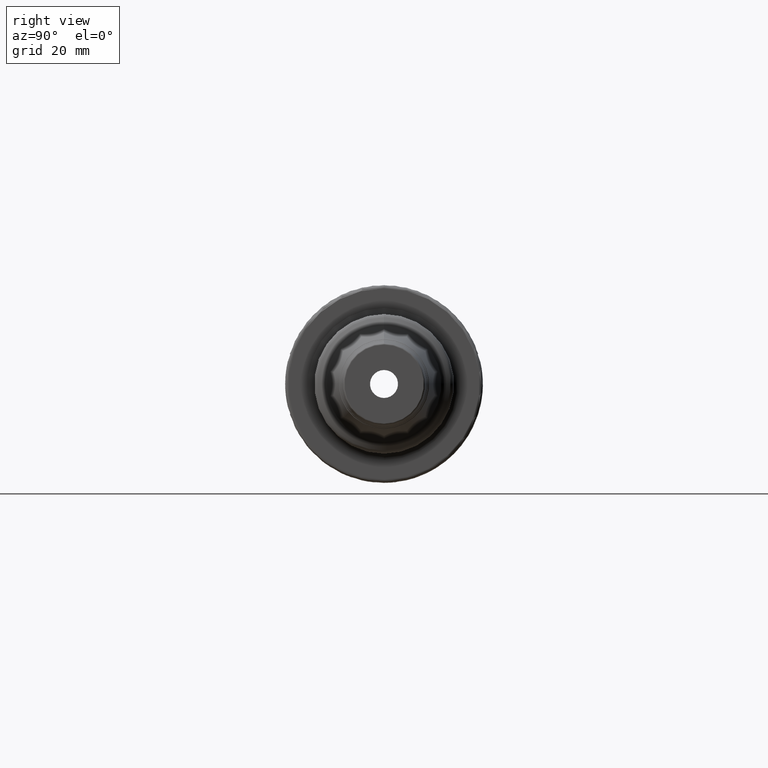
[diagram: clean part render]
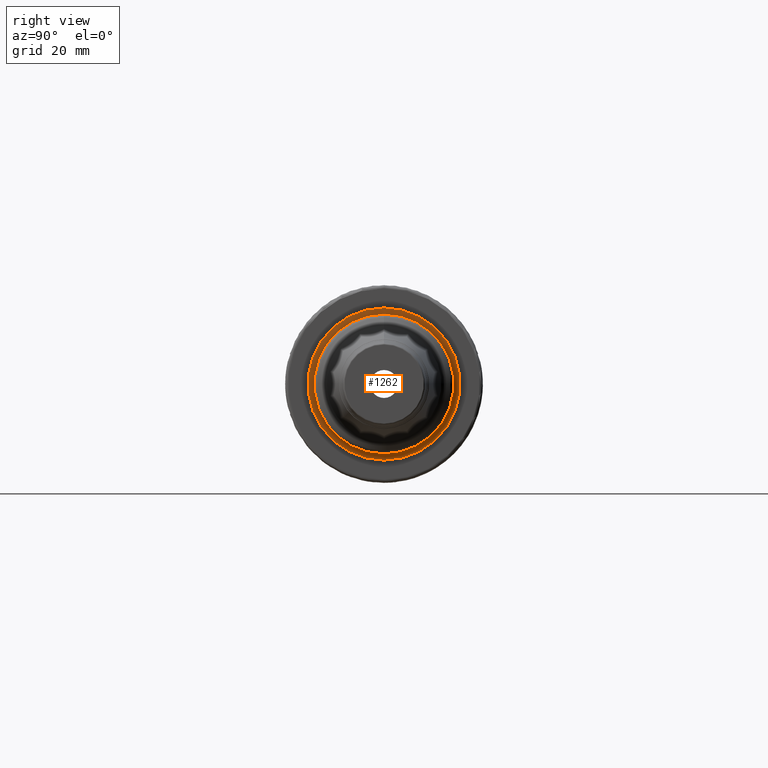
[diagram: same view with one face highlighted and labeled with its STEP entity id]
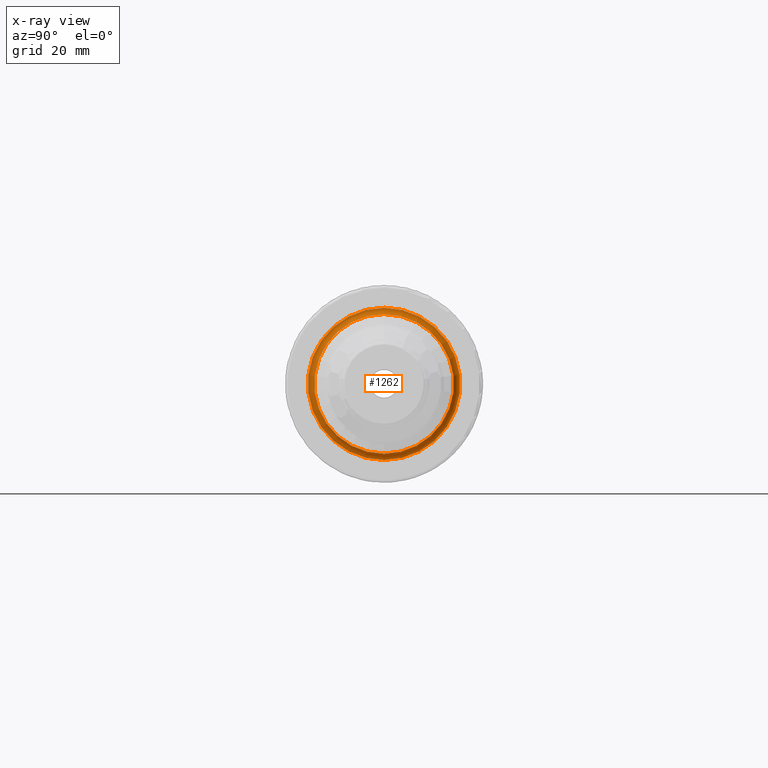
[diagram: x-ray of the same camera — body ghosted, the highlighted face saturated]
A machine part, right view. The second image highlights one B-rep face of the part: STEP entity #1262.
The next image is the same camera in x-ray: the body ghosted, the highlighted face saturated — about 0% of this face is hidden behind the body in this view.
In plain terms, the highlighted toroidal blend (fillet) surface has major radius 24.25 mm and minor (blend) radius 2 mm.
Its self-contained STEP definition (entity closure, byte-faithful):
#278=FACE_OUTER_BOUND('',#360,.T.);
#360=EDGE_LOOP('',(#922,#923,#924,#925,#926));
#457=CIRCLE('',#1400,22.25);
#458=CIRCLE('',#1401,22.25);
#459=CIRCLE('',#1403,2.);
#460=CIRCLE('',#1404,24.25);
#539=VERTEX_POINT('',#2021);
#540=VERTEX_POINT('',#2023);
#541=VERTEX_POINT('',#2027);
#681=EDGE_CURVE('',#540,#539,#457,.T.);
#682=EDGE_CURVE('',#539,#540,#458,.T.);
#683=EDGE_CURVE('',#540,#541,#459,.T.);
#684=EDGE_CURVE('',#541,#541,#460,.T.);
#922=ORIENTED_EDGE('',*,*,#681,.T.);
#923=ORIENTED_EDGE('',*,*,#682,.T.);
#924=ORIENTED_EDGE('',*,*,#683,.T.);
#925=ORIENTED_EDGE('',*,*,#684,.T.);
#926=ORIENTED_EDGE('',*,*,#683,.F.);
#1232=TOROIDAL_SURFACE('',#1402,24.25,2.);
#1262=ADVANCED_FACE('',(#278),#1232,.F.);
#1400=AXIS2_PLACEMENT_3D('',#2024,#1642,#1643);
#1401=AXIS2_PLACEMENT_3D('',#2025,#1644,#1645);
#1402=AXIS2_PLACEMENT_3D('',#2026,#1646,#1647);
#1403=AXIS2_PLACEMENT_3D('',#2028,#1648,#1649);
#1404=AXIS2_PLACEMENT_3D('',#2029,#1650,#1651);
#1642=DIRECTION('center_axis',(-1.,0.,0.));
#1643=DIRECTION('ref_axis',(0.,-1.22464679914735E-16,1.));
#1644=DIRECTION('center_axis',(-1.,0.,0.));
#1645=DIRECTION('ref_axis',(0.,-1.22464679914735E-16,1.));
#1646=DIRECTION('center_axis',(-1.,0.,0.));
#1647=DIRECTION('ref_axis',(0.,0.,1.));
#1648=DIRECTION('center_axis',(0.,-1.,1.22464679914735E-16));
#1649=DIRECTION('ref_axis',(0.,-1.22464679914735E-16,-1.));
#1650=DIRECTION('center_axis',(1.,0.,0.));
#1651=DIRECTION('ref_axis',(0.,-1.22464679914735E-16,1.));
#2021=CARTESIAN_POINT('',(29.,-2.72483912810286E-15,22.25));
#2023=CARTESIAN_POINT('',(29.,0.,-22.25));
#2024=CARTESIAN_POINT('Origin',(29.,0.,0.));
#2025=CARTESIAN_POINT('Origin',(29.,0.,0.));
#2026=CARTESIAN_POINT('Origin',(29.,0.,0.));
#2027=CARTESIAN_POINT('',(27.,5.93953697586466E-15,-24.25));
#2028=CARTESIAN_POINT('Origin',(29.,-2.96976848793233E-15,-24.25));
#2029=CARTESIAN_POINT('Origin',(27.,0.,0.));